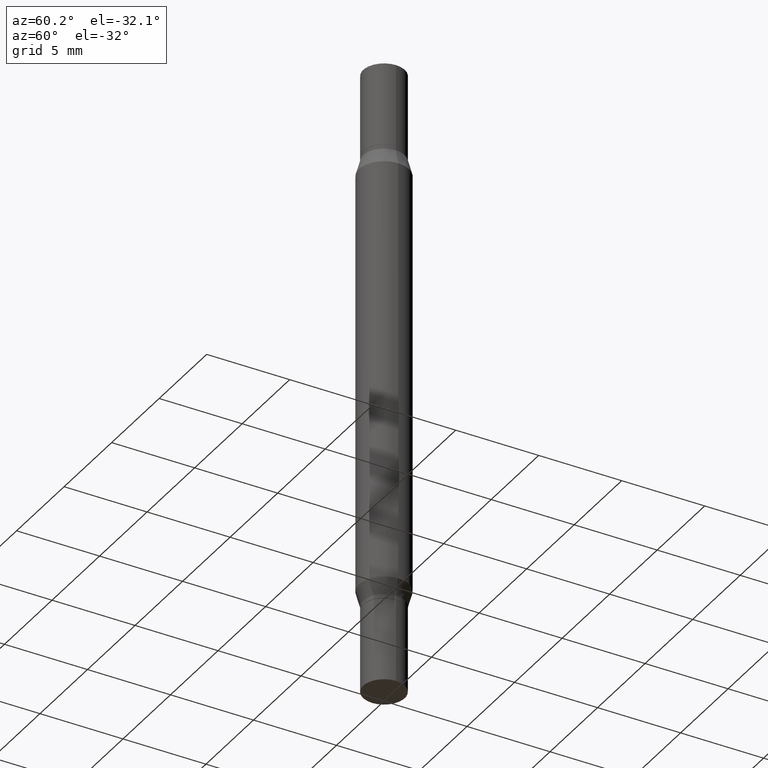
[diagram: clean part render]
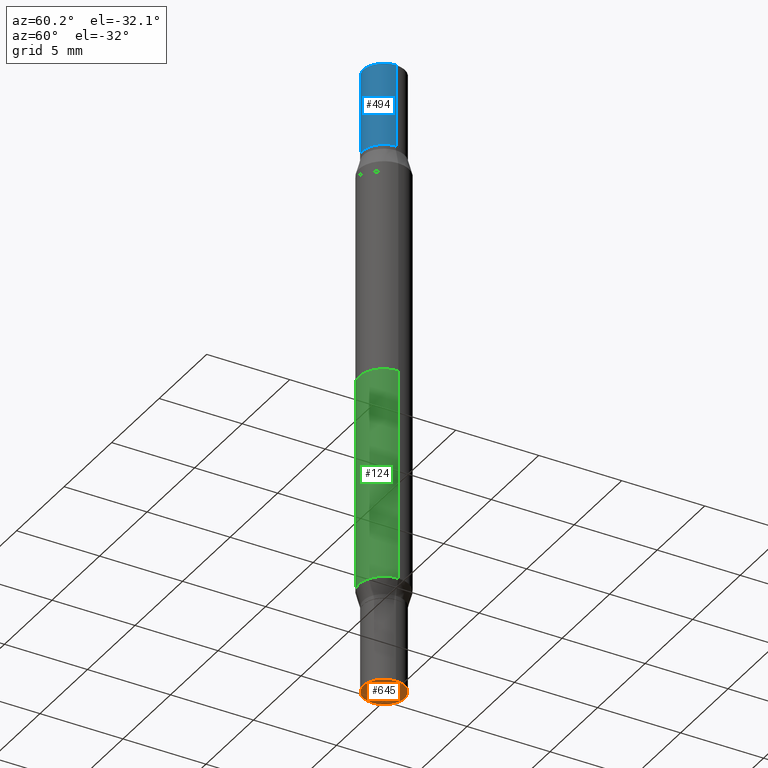
[diagram: same view with three faces highlighted in distinct colors, each labeled with its STEP entity id]
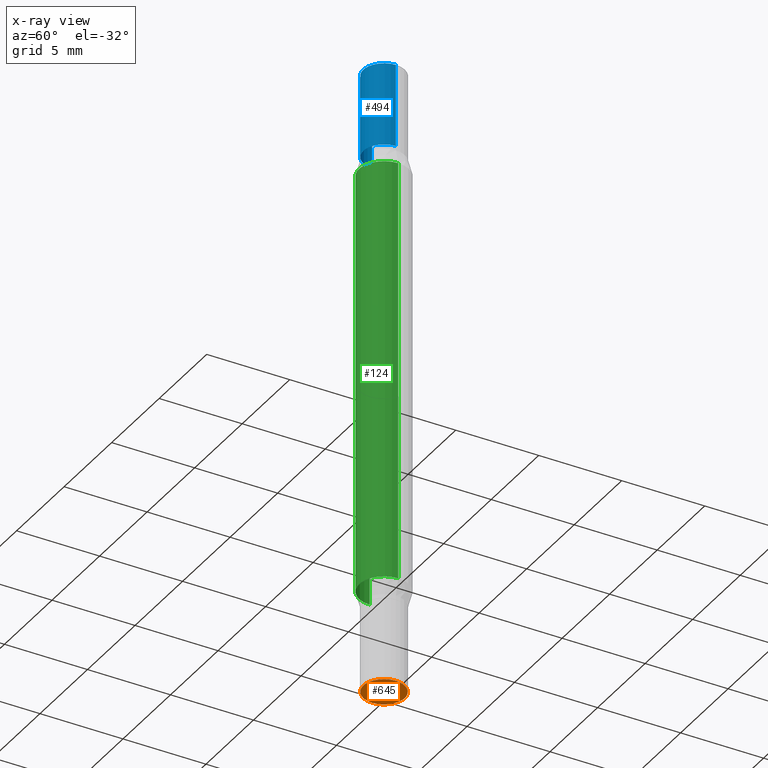
[diagram: x-ray of the same camera — body ghosted, the three highlighted faces saturated]
A machine part, auxiliary view with three faces highlighted in distinct colors.
The next image is the same camera in x-ray (body ghosted, the three faces saturated) — at least one of them is partly hidden behind the body in this view.
Their STEP definitions:

[orange] entity #645 — the highlighted planar face has unit normal (-0, 0, 1).
#12 = CARTESIAN_POINT ( 'NONE',  ( 3.658665880933582389E-29, -5.223605231043229660E-15, -1.496099999999999985 ) ) ;
#22 = PLANE ( 'NONE',  #883 ) ;
#38 = CARTESIAN_POINT ( 'NONE',  ( -0.04920000000000000068, -4.530281867240153147E-15, -1.496099999999999985 ) ) ;
#39 = DIRECTION ( 'NONE',  ( 1.000000000000000000, -6.982962677686261977E-15, 0.000000000000000000 ) ) ;
#62 = DIRECTION ( 'NONE',  ( -2.445468806185136597E-29, 3.491481338843145583E-15, 1.000000000000000000 ) ) ;
#104 = DIRECTION ( 'NONE',  ( 1.000000000000000000, -6.982962677686265922E-15, 4.876176775795935793E-29 ) ) ;
#113 = EDGE_CURVE ( 'NONE', #450, #176, #898, .T. ) ;
#176 = VERTEX_POINT ( 'NONE', #38 ) ;
#195 = CARTESIAN_POINT ( 'NONE',  ( 3.658665880933582389E-29, -5.223605231043229660E-15, -1.496099999999999985 ) ) ;
#247 = CARTESIAN_POINT ( 'NONE',  ( 3.569033433238669537E-29, -5.351963997704447472E-15, -1.496099999999999985 ) ) ;
#450 = VERTEX_POINT ( 'NONE', #685 ) ;
#461 = AXIS2_PLACEMENT_3D ( 'NONE', #12, #62, #973 ) ;
#517 = EDGE_CURVE ( 'NONE', #176, #450, #856, .T. ) ;
#645 = ADVANCED_FACE ( 'NONE', ( #758 ), #22, .F. ) ;
#685 = CARTESIAN_POINT ( 'NONE',  ( 0.04920000000000000068, -5.567166994785393395E-15, -1.496099999999999985 ) ) ;
#692 = AXIS2_PLACEMENT_3D ( 'NONE', #195, #940, #39 ) ;
#701 = EDGE_LOOP ( 'NONE', ( #832, #739 ) ) ;
#739 = ORIENTED_EDGE ( 'NONE', *, *, #517, .F. ) ;
#758 = FACE_OUTER_BOUND ( 'NONE', #701, .T. ) ;
#777 = DIRECTION ( 'NONE',  ( -2.438088387897960049E-29, 3.491481338843145188E-15, 1.000000000000000000 ) ) ;
#832 = ORIENTED_EDGE ( 'NONE', *, *, #113, .F. ) ;
#856 = CIRCLE ( 'NONE', #692, 0.04920000000000000068 ) ;
#883 = AXIS2_PLACEMENT_3D ( 'NONE', #247, #777, #104 ) ;
#898 = CIRCLE ( 'NONE', #461, 0.04920000000000000068 ) ;
#940 = DIRECTION ( 'NONE',  ( -2.445468806185136597E-29, 3.491481338843145583E-15, 1.000000000000000000 ) ) ;
#973 = DIRECTION ( 'NONE',  ( 1.000000000000000000, -6.982962677686261977E-15, 0.000000000000000000 ) ) ;

[blue] entity #494 — the highlighted cylindrical surface (edge-blend (fillet) strip) has radius 1.2497 mm, axis along (-0, -0, -1).
#1 = CARTESIAN_POINT ( 'NONE',  ( 0.04920000000000000068, -5.567409180549447565E-15, -1.496099999999999985 ) ) ;
#42 = CIRCLE ( 'NONE', #503, 0.04920000000000000068 ) ;
#71 = VERTEX_POINT ( 'NONE', #284 ) ;
#80 = ORIENTED_EDGE ( 'NONE', *, *, #265, .T. ) ;
#88 = VERTEX_POINT ( 'NONE', #764 ) ;
#114 = CARTESIAN_POINT ( 'NONE',  ( 3.658665880933582389E-29, 2.421857640538043390E-19, 0.000000000000000000 ) ) ;
#216 = VERTEX_POINT ( 'NONE', #449 ) ;
#217 = VECTOR ( 'NONE', #301, 39.37007874015748143 ) ;
#219 = DIRECTION ( 'NONE',  ( -2.445468806185136877E-29, -3.491805094961123683E-15, -1.000000000000000000 ) ) ;
#263 = ORIENTED_EDGE ( 'NONE', *, *, #418, .T. ) ;
#265 = EDGE_CURVE ( 'NONE', #867, #71, #976, .T. ) ;
#266 = DIRECTION ( 'NONE',  ( 1.000000000000000000, -6.982962677686261977E-15, 0.000000000000000000 ) ) ;
#284 = CARTESIAN_POINT ( 'NONE',  ( -0.04920000000000000068, -5.989524344509276303E-18, -0.1969000000000000195 ) ) ;
#301 = DIRECTION ( 'NONE',  ( -2.445468806185136877E-29, -3.491805094961123683E-15, -1.000000000000000000 ) ) ;
#341 = DIRECTION ( 'NONE',  ( 1.000000000000000000, -6.982962677686266711E-15, 2.260776888683160490E-33 ) ) ;
#352 = ORIENTED_EDGE ( 'NONE', *, *, #797, .F. ) ;
#373 = ORIENTED_EDGE ( 'NONE', *, *, #552, .F. ) ;
#384 = CARTESIAN_POINT ( 'NONE',  ( -0.04920000000000000068, -5.989524344509276303E-18, 1.224930569750488453E-30 ) ) ;
#403 = DIRECTION ( 'NONE',  ( -2.445468806185136597E-29, -3.491805094961124077E-15, -1.000000000000000000 ) ) ;
#418 = EDGE_CURVE ( 'NONE', #71, #216, #673, .T. ) ;
#421 = DIRECTION ( 'NONE',  ( 2.445468806185136597E-29, 3.491805094961124077E-15, 1.000000000000000000 ) ) ;
#449 = CARTESIAN_POINT ( 'NONE',  ( 0.04920000000000000068, -1.030856001175955426E-15, -0.1969000000000000195 ) ) ;
#457 = CARTESIAN_POINT ( 'NONE',  ( -0.04920000000000000068, -4.886310915316924225E-15, -1.496099999999999985 ) ) ;
#478 = AXIS2_PLACEMENT_3D ( 'NONE', #949, #403, #266 ) ;
#494 = ADVANCED_FACE ( 'NONE', ( #556 ), #702, .T. ) ;
#503 = AXIS2_PLACEMENT_3D ( 'NONE', #114, #421, #341 ) ;
#552 = EDGE_CURVE ( 'NONE', #867, #88, #42, .T. ) ;
#556 = FACE_OUTER_BOUND ( 'NONE', #681, .T. ) ;
#602 = DIRECTION ( 'NONE',  ( 2.445468806185136597E-29, 3.491805094961124077E-15, 1.000000000000000000 ) ) ;
#619 = CARTESIAN_POINT ( 'NONE',  ( 3.177153072995728757E-29, -6.872942374337910995E-16, -0.1969000000000000195 ) ) ;
#673 = CIRCLE ( 'NONE', #719, 0.04920000000000000068 ) ;
#681 = EDGE_LOOP ( 'NONE', ( #373, #80, #263, #352 ) ) ;
#702 = CYLINDRICAL_SURFACE ( 'NONE', #478, 0.04920000000000000068 ) ;
#719 = AXIS2_PLACEMENT_3D ( 'NONE', #619, #602, #929 ) ;
#735 = VECTOR ( 'NONE', #219, 39.37007874015748143 ) ;
#764 = CARTESIAN_POINT ( 'NONE',  ( 0.04920000000000000068, -3.433195779781105028E-16, 1.112302229232114997E-34 ) ) ;
#797 = EDGE_CURVE ( 'NONE', #88, #216, #904, .T. ) ;
#867 = VERTEX_POINT ( 'NONE', #384 ) ;
#904 = LINE ( 'NONE', #1, #735 ) ;
#929 = DIRECTION ( 'NONE',  ( 1.000000000000000000, -6.982962677686266711E-15, 0.000000000000000000 ) ) ;
#949 = CARTESIAN_POINT ( 'NONE',  ( 0.000000000000000000, -5.223847416807283040E-15, -1.496099999999999985 ) ) ;
#976 = LINE ( 'NONE', #457, #217 ) ;

[green] entity #124 — the highlighted cylindrical surface (edge-blend (fillet) strip) has radius 1.4999 mm, axis along (-0, -0, -1).
#45 = ORIENTED_EDGE ( 'NONE', *, *, #214, .T. ) ;
#52 = AXIS2_PLACEMENT_3D ( 'NONE', #166, #469, #458 ) ;
#75 = VERTEX_POINT ( 'NONE', #915 ) ;
#83 = FACE_OUTER_BOUND ( 'NONE', #543, .T. ) ;
#97 = CIRCLE ( 'NONE', #652, 0.05904999999999999832 ) ;
#124 = ADVANCED_FACE ( 'NONE', ( #83 ), #378, .T. ) ;
#136 = EDGE_CURVE ( 'NONE', #531, #522, #97, .T. ) ;
#140 = CARTESIAN_POINT ( 'NONE',  ( -0.05904999999999999832, -4.818735010038875060E-15, -1.496099999999999985 ) ) ;
#166 = CARTESIAN_POINT ( 'NONE',  ( 0.000000000000000000, -5.223847416807283040E-15, -1.496099999999999985 ) ) ;
#188 = CIRCLE ( 'NONE', #462, 0.05904999999999999832 ) ;
#211 = DIRECTION ( 'NONE',  ( -2.445468806185136877E-29, -3.491805094961123683E-15, -1.000000000000000000 ) ) ;
#214 = EDGE_CURVE ( 'NONE', #531, #75, #586, .T. ) ;
#224 = DIRECTION ( 'NONE',  ( -2.445468806185136877E-29, -3.491805094961123683E-15, -1.000000000000000000 ) ) ;
#233 = CARTESIAN_POINT ( 'NONE',  ( 3.062556691798133272E-29, -4.372519294262821742E-15, -1.252339299545446316 ) ) ;
#282 = CARTESIAN_POINT ( 'NONE',  ( 0.05904999999999999832, -5.636191362924657961E-15, -1.496099999999999985 ) ) ;
#288 = EDGE_CURVE ( 'NONE', #522, #644, #654, .T. ) ;
#320 = EDGE_CURVE ( 'NONE', #75, #644, #188, .T. ) ;
#378 = CYLINDRICAL_SURFACE ( 'NONE', #52, 0.05904999999999999832 ) ;
#458 = DIRECTION ( 'NONE',  ( 1.000000000000000000, -6.982962677686273021E-15, 0.000000000000000000 ) ) ;
#462 = AXIS2_PLACEMENT_3D ( 'NONE', #233, #612, #474 ) ;
#469 = DIRECTION ( 'NONE',  ( -2.445468806185136597E-29, -3.491805094961124077E-15, -1.000000000000000000 ) ) ;
#474 = DIRECTION ( 'NONE',  ( 1.000000000000000000, -6.982962677686273021E-15, 0.000000000000000000 ) ) ;
#497 = CARTESIAN_POINT ( 'NONE',  ( 0.05904999999999999832, -1.263266616151821658E-15, -0.2437607004545535860 ) ) ;
#510 = CARTESIAN_POINT ( 'NONE',  ( 0.05904999999999999832, -4.784863240380196662E-15, -1.252339299545446316 ) ) ;
#522 = VERTEX_POINT ( 'NONE', #497 ) ;
#531 = VERTEX_POINT ( 'NONE', #935 ) ;
#543 = EDGE_LOOP ( 'NONE', ( #851, #45, #907, #761 ) ) ;
#586 = LINE ( 'NONE', #140, #803 ) ;
#612 = DIRECTION ( 'NONE',  ( -2.445468806185136597E-29, 3.491481338843145583E-15, 1.000000000000000000 ) ) ;
#644 = VERTEX_POINT ( 'NONE', #510 ) ;
#652 = AXIS2_PLACEMENT_3D ( 'NONE', #748, #755, #760 ) ;
#654 = LINE ( 'NONE', #282, #706 ) ;
#706 = VECTOR ( 'NONE', #211, 39.37007874015748143 ) ;
#748 = CARTESIAN_POINT ( 'NONE',  ( 3.062556691798133272E-29, -8.509226700344482173E-16, -0.2437607004545535860 ) ) ;
#755 = DIRECTION ( 'NONE',  ( 2.445468806185136597E-29, 3.491805094961124077E-15, 1.000000000000000000 ) ) ;
#760 = DIRECTION ( 'NONE',  ( 1.000000000000000000, -6.982962677686265133E-15, 0.000000000000000000 ) ) ;
#761 = ORIENTED_EDGE ( 'NONE', *, *, #288, .F. ) ;
#803 = VECTOR ( 'NONE', #224, 39.37007874015748143 ) ;
#851 = ORIENTED_EDGE ( 'NONE', *, *, #136, .F. ) ;
#907 = ORIENTED_EDGE ( 'NONE', *, *, #320, .T. ) ;
#915 = CARTESIAN_POINT ( 'NONE',  ( -0.05904999999999999832, -2.206690208753205666E-15, -1.252339299545446316 ) ) ;
#935 = CARTESIAN_POINT ( 'NONE',  ( -0.05904999999999999832, -4.458102632660388560E-16, -0.2437607004545535860 ) ) ;